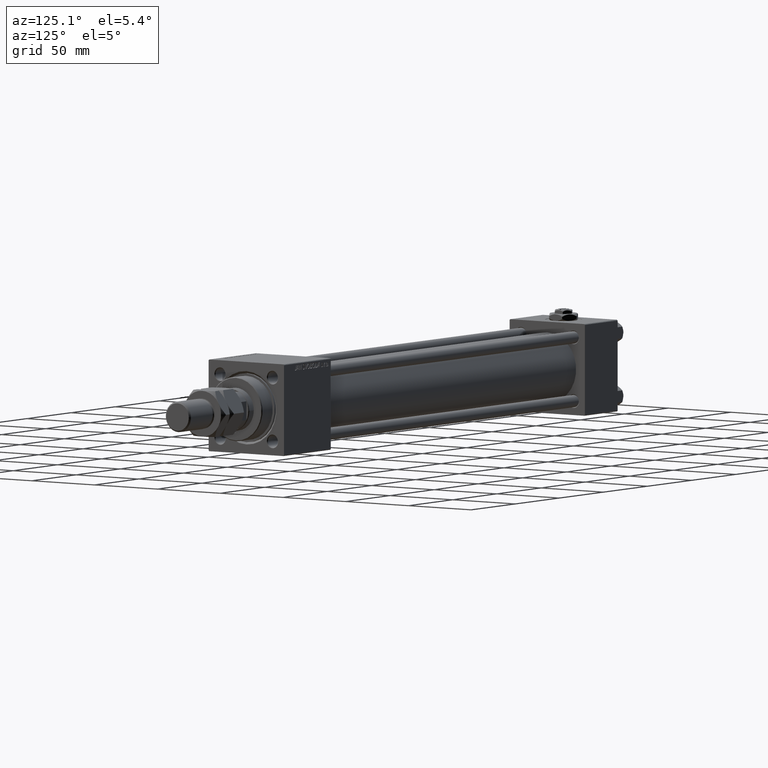
[diagram: clean part render]
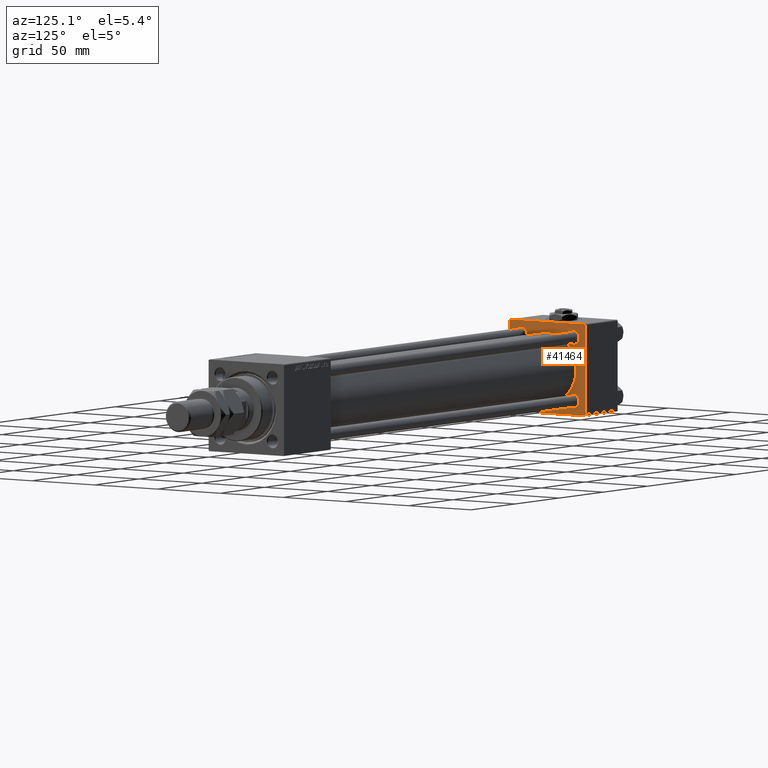
[diagram: same view with one face highlighted and labeled with its STEP entity id]
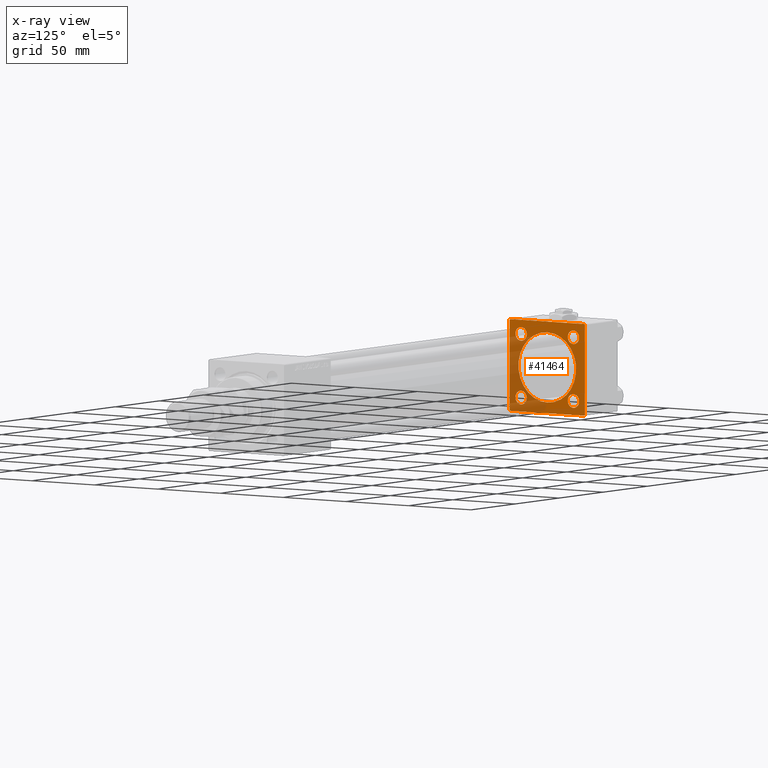
[diagram: x-ray of the same camera — body ghosted, the highlighted face saturated]
A machine part, auxiliary view. The second image highlights one B-rep face of the part: STEP entity #41464.
The next image is the same camera in x-ray: the body ghosted, the highlighted face saturated — about 34% of this face is hidden behind the body in this view.
In plain terms, the highlighted planar face has unit normal (-1, 0, 0).
Its self-contained STEP definition (entity closure, byte-faithful):
#707 = EDGE_LOOP ( 'NONE', ( #50518, #11132, #3508, #8959, #29452, #10501, #30782, #25121 ) ) ;
#965 = VERTEX_POINT ( 'NONE', #37249 ) ;
#1160 = VERTEX_POINT ( 'NONE', #41490 ) ;
#1193 = AXIS2_PLACEMENT_3D ( 'NONE', #8092, #20528, #24330 ) ;
#1254 = LINE ( 'NONE', #22634, #9952 ) ;
#1265 = VECTOR ( 'NONE', #11293, 999.9999999999998863 ) ;
#1795 = EDGE_CURVE ( 'NONE', #965, #50908, #12852, .T. ) ;
#3396 = DIRECTION ( 'NONE',  ( 0.000000000000000000, 0.000000000000000000, 1.000000000000000000 ) ) ;
#3482 = ORIENTED_EDGE ( 'NONE', *, *, #6127, .T. ) ;
#3498 = CIRCLE ( 'NONE', #23378, 4.500000000000003553 ) ;
#3508 = ORIENTED_EDGE ( 'NONE', *, *, #49404, .F. ) ;
#3791 = DIRECTION ( 'NONE',  ( 0.000000000000000000, 0.000000000000000000, 1.000000000000000000 ) ) ;
#4093 = EDGE_CURVE ( 'NONE', #36121, #1160, #12042, .T. ) ;
#4130 = CARTESIAN_POINT ( 'NONE',  ( 37.00000000000000000, -29.49999999999998579, 29.99999999999999289 ) ) ;
#4292 = FACE_BOUND ( 'NONE', #24206, .T. ) ;
#4928 = ORIENTED_EDGE ( 'NONE', *, *, #35714, .T. ) ;
#5407 = VERTEX_POINT ( 'NONE', #24475 ) ;
#5493 = VERTEX_POINT ( 'NONE', #15552 ) ;
#5596 = CARTESIAN_POINT ( 'NONE',  ( 37.00000000000000000, 20.84999999999999787, 20.85000000000000142 ) ) ;
#5675 = CARTESIAN_POINT ( 'NONE',  ( 37.00000000000000000, -20.84999999999999076, -25.35000000000000853 ) ) ;
#6037 = CARTESIAN_POINT ( 'NONE',  ( 37.00000000000000000, -29.50000000000001066, -30.00000000000000711 ) ) ;
#6127 = EDGE_CURVE ( 'NONE', #5493, #7357, #3498, .T. ) ;
#6299 = ORIENTED_EDGE ( 'NONE', *, *, #37953, .T. ) ;
#6471 = VERTEX_POINT ( 'NONE', #30424 ) ;
#6746 = EDGE_CURVE ( 'NONE', #46639, #12591, #37958, .T. ) ;
#6992 = CARTESIAN_POINT ( 'NONE',  ( 37.00000000000000000, -30.00000000000000000, -29.50000000000001776 ) ) ;
#7067 = VERTEX_POINT ( 'NONE', #14254 ) ;
#7357 = VERTEX_POINT ( 'NONE', #5675 ) ;
#8092 = CARTESIAN_POINT ( 'NONE',  ( 37.00000000000000000, 0.000000000000000000, 0.000000000000000000 ) ) ;
#8927 = CARTESIAN_POINT ( 'NONE',  ( 37.00000000000000000, 29.99999999999999289, -30.00000000000000000 ) ) ;
#8933 = EDGE_CURVE ( 'NONE', #37255, #41369, #32789, .T. ) ;
#8959 = ORIENTED_EDGE ( 'NONE', *, *, #6746, .T. ) ;
#9342 = DIRECTION ( 'NONE',  ( 0.000000000000000000, 0.000000000000000000, 1.000000000000000000 ) ) ;
#9469 = AXIS2_PLACEMENT_3D ( 'NONE', #46991, #38850, #31000 ) ;
#9952 = VECTOR ( 'NONE', #14510, 1000.000000000000114 ) ;
#10501 = ORIENTED_EDGE ( 'NONE', *, *, #22812, .T. ) ;
#11132 = ORIENTED_EDGE ( 'NONE', *, *, #43565, .T. ) ;
#11293 = DIRECTION ( 'NONE',  ( -0.000000000000000000, 0.7071067811865574537, 0.7071067811865376918 ) ) ;
#11464 = CIRCLE ( 'NONE', #31342, 4.500000000000003553 ) ;
#11566 = CIRCLE ( 'NONE', #23647, 4.500000000000003553 ) ;
#11893 = ORIENTED_EDGE ( 'NONE', *, *, #18590, .F. ) ;
#12042 = CIRCLE ( 'NONE', #18967, 4.500000000000003553 ) ;
#12181 = DIRECTION ( 'NONE',  ( 1.000000000000000000, -0.000000000000000000, 0.000000000000000000 ) ) ;
#12504 = DIRECTION ( 'NONE',  ( -1.000000000000000000, 0.000000000000000000, -0.000000000000000000 ) ) ;
#12591 = VERTEX_POINT ( 'NONE', #43808 ) ;
#12852 = CIRCLE ( 'NONE', #37911, 4.500000000000003553 ) ;
#13892 = CARTESIAN_POINT ( 'NONE',  ( 37.00000000000000000, 29.99999999999999289, -29.50000000000000000 ) ) ;
#13919 = CARTESIAN_POINT ( 'NONE',  ( 37.00000000000000000, 20.84999999999999787, 20.85000000000000142 ) ) ;
#14254 = CARTESIAN_POINT ( 'NONE',  ( 37.00000000000000000, -29.50000000000000000, -30.00000000000000711 ) ) ;
#14510 = DIRECTION ( 'NONE',  ( -0.000000000000000000, -0.7071067811865474617, -0.7071067811865474617 ) ) ;
#15552 = CARTESIAN_POINT ( 'NONE',  ( 37.00000000000000000, -20.84999999999999076, -16.35000000000000142 ) ) ;
#15892 = EDGE_CURVE ( 'NONE', #7357, #5493, #11566, .T. ) ;
#17610 = VECTOR ( 'NONE', #44129, 1000.000000000000000 ) ;
#17663 = AXIS2_PLACEMENT_3D ( 'NONE', #5596, #22104, #38623 ) ;
#17762 = DIRECTION ( 'NONE',  ( -1.000000000000000000, 0.000000000000000000, -0.000000000000000000 ) ) ;
#17804 = VECTOR ( 'NONE', #23282, 1000.000000000000000 ) ;
#18113 = LINE ( 'NONE', #8927, #29172 ) ;
#18283 = EDGE_CURVE ( 'NONE', #5407, #6471, #28901, .T. ) ;
#18590 = EDGE_CURVE ( 'NONE', #41369, #37255, #49687, .T. ) ;
#18967 = AXIS2_PLACEMENT_3D ( 'NONE', #28988, #21131, #25476 ) ;
#20260 = CARTESIAN_POINT ( 'NONE',  ( 37.00000000000000000, 29.99999999999999289, 30.00000000000000000 ) ) ;
#20528 = DIRECTION ( 'NONE',  ( -1.000000000000000000, 0.000000000000000000, -0.000000000000000000 ) ) ;
#20801 = PLANE ( 'NONE',  #1193 ) ;
#20884 = DIRECTION ( 'NONE',  ( 0.000000000000000000, -0.7071067811865474617, 0.7071067811865474617 ) ) ;
#21014 = DIRECTION ( 'NONE',  ( 0.000000000000000000, 0.000000000000000000, 1.000000000000000000 ) ) ;
#21131 = DIRECTION ( 'NONE',  ( -1.000000000000000000, 0.000000000000000000, -0.000000000000000000 ) ) ;
#21137 = EDGE_CURVE ( 'NONE', #22672, #7067, #31205, .T. ) ;
#21705 = VECTOR ( 'NONE', #20884, 1000.000000000000114 ) ;
#21797 = EDGE_LOOP ( 'NONE', ( #44318, #11893 ) ) ;
#22001 = VERTEX_POINT ( 'NONE', #40395 ) ;
#22104 = DIRECTION ( 'NONE',  ( -1.000000000000000000, 0.000000000000000000, -0.000000000000000000 ) ) ;
#22634 = CARTESIAN_POINT ( 'NONE',  ( 37.00000000000000000, -30.00000000000000000, 29.49999999999999289 ) ) ;
#22672 = VERTEX_POINT ( 'NONE', #6992 ) ;
#22742 = CARTESIAN_POINT ( 'NONE',  ( 37.00000000000000000, 29.99999999999999289, 30.00000000000000000 ) ) ;
#22812 = EDGE_CURVE ( 'NONE', #48052, #22001, #1254, .T. ) ;
#23282 = DIRECTION ( 'NONE',  ( 0.000000000000000000, 0.000000000000000000, -1.000000000000000000 ) ) ;
#23378 = AXIS2_PLACEMENT_3D ( 'NONE', #32947, #41347, #21014 ) ;
#23647 = AXIS2_PLACEMENT_3D ( 'NONE', #45782, #40637, #28706 ) ;
#23799 = DIRECTION ( 'NONE',  ( 0.000000000000000000, -1.000000000000000000, -1.156482317317871725E-16 ) ) ;
#24193 = EDGE_LOOP ( 'NONE', ( #6299, #44244 ) ) ;
#24206 = EDGE_LOOP ( 'NONE', ( #4928, #53564 ) ) ;
#24330 = DIRECTION ( 'NONE',  ( -0.000000000000000000, 0.000000000000000000, 1.000000000000000000 ) ) ;
#24475 = CARTESIAN_POINT ( 'NONE',  ( 37.00000000000000000, 20.84999999999999787, 25.35000000000000497 ) ) ;
#24868 = FACE_BOUND ( 'NONE', #52131, .T. ) ;
#24972 = CARTESIAN_POINT ( 'NONE',  ( 37.00000000000000000, 20.84999999999999787, -20.85000000000000142 ) ) ;
#25121 = ORIENTED_EDGE ( 'NONE', *, *, #21137, .T. ) ;
#25290 = CARTESIAN_POINT ( 'NONE',  ( 37.00000000000000000, 29.49999999999997868, -30.00000000000000000 ) ) ;
#25308 = DIRECTION ( 'NONE',  ( -1.000000000000000000, 0.000000000000000000, -0.000000000000000000 ) ) ;
#25343 = VECTOR ( 'NONE', #23799, 1000.000000000000000 ) ;
#25407 = FACE_BOUND ( 'NONE', #49892, .T. ) ;
#25476 = DIRECTION ( 'NONE',  ( 0.000000000000000000, 0.000000000000000000, 1.000000000000000000 ) ) ;
#26331 = AXIS2_PLACEMENT_3D ( 'NONE', #28958, #12181, #3791 ) ;
#26588 = AXIS2_PLACEMENT_3D ( 'NONE', #32102, #28292, #3396 ) ;
#26751 = CARTESIAN_POINT ( 'NONE',  ( 37.00000000000000000, 29.99999999999999289, -29.50000000000000000 ) ) ;
#27399 = CARTESIAN_POINT ( 'NONE',  ( 37.00000000000000000, -20.84999999999999076, 25.35000000000000853 ) ) ;
#27610 = LINE ( 'NONE', #48184, #17610 ) ;
#28031 = VECTOR ( 'NONE', #47723, 1000.000000000000114 ) ;
#28292 = DIRECTION ( 'NONE',  ( -1.000000000000000000, 0.000000000000000000, -0.000000000000000000 ) ) ;
#28704 = EDGE_CURVE ( 'NONE', #52016, #7067, #18113, .T. ) ;
#28706 = DIRECTION ( 'NONE',  ( 0.000000000000000000, 0.000000000000000000, 1.000000000000000000 ) ) ;
#28901 = CIRCLE ( 'NONE', #17663, 4.500000000000003553 ) ;
#28958 = CARTESIAN_POINT ( 'NONE',  ( 36.99999999999997868, -2.602085213965210642E-15, 0.000000000000000000 ) ) ;
#28988 = CARTESIAN_POINT ( 'NONE',  ( 37.00000000000000000, -20.84999999999999076, 20.85000000000000497 ) ) ;
#29172 = VECTOR ( 'NONE', #50634, 1000.000000000000000 ) ;
#29279 = AXIS2_PLACEMENT_3D ( 'NONE', #13919, #25308, #9342 ) ;
#29407 = DIRECTION ( 'NONE',  ( 0.000000000000000000, 0.000000000000000000, 1.000000000000000000 ) ) ;
#29452 = ORIENTED_EDGE ( 'NONE', *, *, #40410, .T. ) ;
#30424 = CARTESIAN_POINT ( 'NONE',  ( 37.00000000000000000, 20.84999999999999787, 16.34999999999999787 ) ) ;
#30782 = ORIENTED_EDGE ( 'NONE', *, *, #41385, .T. ) ;
#31000 = DIRECTION ( 'NONE',  ( 0.000000000000000000, 0.000000000000000000, 1.000000000000000000 ) ) ;
#31205 = LINE ( 'NONE', #6037, #28031 ) ;
#31342 = AXIS2_PLACEMENT_3D ( 'NONE', #24972, #12504, #33638 ) ;
#31867 = LINE ( 'NONE', #26751, #1265 ) ;
#32102 = CARTESIAN_POINT ( 'NONE',  ( 37.00000000000000000, -20.84999999999999076, 20.85000000000000497 ) ) ;
#32789 = CIRCLE ( 'NONE', #9469, 23.00000000000000000 ) ;
#32947 = CARTESIAN_POINT ( 'NONE',  ( 37.00000000000000000, -20.84999999999999076, -20.85000000000000497 ) ) ;
#33638 = DIRECTION ( 'NONE',  ( 0.000000000000000000, 0.000000000000000000, 1.000000000000000000 ) ) ;
#35083 = ORIENTED_EDGE ( 'NONE', *, *, #15892, .T. ) ;
#35714 = EDGE_CURVE ( 'NONE', #6471, #5407, #41397, .T. ) ;
#36121 = VERTEX_POINT ( 'NONE', #27399 ) ;
#36200 = ORIENTED_EDGE ( 'NONE', *, *, #4093, .T. ) ;
#37249 = CARTESIAN_POINT ( 'NONE',  ( 37.00000000000000000, 20.84999999999999787, -16.34999999999999787 ) ) ;
#37255 = VERTEX_POINT ( 'NONE', #48968 ) ;
#37911 = AXIS2_PLACEMENT_3D ( 'NONE', #38870, #17762, #29407 ) ;
#37953 = EDGE_CURVE ( 'NONE', #50908, #965, #11464, .T. ) ;
#37958 = LINE ( 'NONE', #50423, #21705 ) ;
#38623 = DIRECTION ( 'NONE',  ( 0.000000000000000000, 0.000000000000000000, 1.000000000000000000 ) ) ;
#38850 = DIRECTION ( 'NONE',  ( 1.000000000000000000, -0.000000000000000000, 0.000000000000000000 ) ) ;
#38870 = CARTESIAN_POINT ( 'NONE',  ( 37.00000000000000000, 20.84999999999999787, -20.85000000000000142 ) ) ;
#39795 = LINE ( 'NONE', #22742, #17804 ) ;
#40395 = CARTESIAN_POINT ( 'NONE',  ( 37.00000000000000000, -30.00000000000000000, 29.49999999999999289 ) ) ;
#40410 = EDGE_CURVE ( 'NONE', #12591, #48052, #52525, .T. ) ;
#40637 = DIRECTION ( 'NONE',  ( -1.000000000000000000, 0.000000000000000000, -0.000000000000000000 ) ) ;
#40852 = FACE_BOUND ( 'NONE', #21797, .T. ) ;
#41347 = DIRECTION ( 'NONE',  ( -1.000000000000000000, 0.000000000000000000, -0.000000000000000000 ) ) ;
#41369 = VERTEX_POINT ( 'NONE', #44654 ) ;
#41385 = EDGE_CURVE ( 'NONE', #22001, #22672, #27610, .T. ) ;
#41397 = CIRCLE ( 'NONE', #29279, 4.500000000000003553 ) ;
#41464 = ADVANCED_FACE ( 'NONE', ( #25407, #49515, #24868, #4292, #40852, #45186 ), #20801, .F. ) ;
#41490 = CARTESIAN_POINT ( 'NONE',  ( 37.00000000000000000, -20.84999999999999076, 16.35000000000000142 ) ) ;
#43565 = EDGE_CURVE ( 'NONE', #52016, #44890, #31867, .T. ) ;
#43808 = CARTESIAN_POINT ( 'NONE',  ( 37.00000000000000000, 29.49999999999999289, 30.00000000000000000 ) ) ;
#44129 = DIRECTION ( 'NONE',  ( 0.000000000000000000, 0.000000000000000000, -1.000000000000000000 ) ) ;
#44244 = ORIENTED_EDGE ( 'NONE', *, *, #1795, .T. ) ;
#44318 = ORIENTED_EDGE ( 'NONE', *, *, #8933, .F. ) ;
#44654 = CARTESIAN_POINT ( 'NONE',  ( 36.99999999999997868, 2.146024240737016609E-16, -23.00000000000000000 ) ) ;
#44890 = VERTEX_POINT ( 'NONE', #13892 ) ;
#45186 = FACE_OUTER_BOUND ( 'NONE', #707, .T. ) ;
#45782 = CARTESIAN_POINT ( 'NONE',  ( 37.00000000000000000, -20.84999999999999076, -20.85000000000000497 ) ) ;
#46639 = VERTEX_POINT ( 'NONE', #51645 ) ;
#46991 = CARTESIAN_POINT ( 'NONE',  ( 36.99999999999997868, -2.602085213965210642E-15, 0.000000000000000000 ) ) ;
#47723 = DIRECTION ( 'NONE',  ( 0.000000000000000000, 0.7071067811865474617, -0.7071067811865474617 ) ) ;
#48052 = VERTEX_POINT ( 'NONE', #4130 ) ;
#48184 = CARTESIAN_POINT ( 'NONE',  ( 37.00000000000000000, -30.00000000000000000, 29.99999999999999289 ) ) ;
#48968 = CARTESIAN_POINT ( 'NONE',  ( 36.99999999999997868, -2.602085213965210642E-15, 23.00000000000000000 ) ) ;
#49363 = ORIENTED_EDGE ( 'NONE', *, *, #52667, .T. ) ;
#49404 = EDGE_CURVE ( 'NONE', #46639, #44890, #39795, .T. ) ;
#49515 = FACE_BOUND ( 'NONE', #24193, .T. ) ;
#49687 = CIRCLE ( 'NONE', #26331, 23.00000000000000000 ) ;
#49892 = EDGE_LOOP ( 'NONE', ( #35083, #3482 ) ) ;
#49926 = CIRCLE ( 'NONE', #26588, 4.500000000000003553 ) ;
#50423 = CARTESIAN_POINT ( 'NONE',  ( 37.00000000000000000, 29.49999999999999289, 30.00000000000000000 ) ) ;
#50518 = ORIENTED_EDGE ( 'NONE', *, *, #28704, .F. ) ;
#50634 = DIRECTION ( 'NONE',  ( 0.000000000000000000, -1.000000000000000000, -1.156482317317871725E-16 ) ) ;
#50908 = VERTEX_POINT ( 'NONE', #51619 ) ;
#51619 = CARTESIAN_POINT ( 'NONE',  ( 37.00000000000000000, 20.84999999999999787, -25.35000000000000497 ) ) ;
#51645 = CARTESIAN_POINT ( 'NONE',  ( 37.00000000000000000, 29.99999999999999289, 29.50000000000000000 ) ) ;
#52016 = VERTEX_POINT ( 'NONE', #25290 ) ;
#52131 = EDGE_LOOP ( 'NONE', ( #49363, #36200 ) ) ;
#52525 = LINE ( 'NONE', #20260, #25343 ) ;
#52667 = EDGE_CURVE ( 'NONE', #1160, #36121, #49926, .T. ) ;
#53564 = ORIENTED_EDGE ( 'NONE', *, *, #18283, .T. ) ;